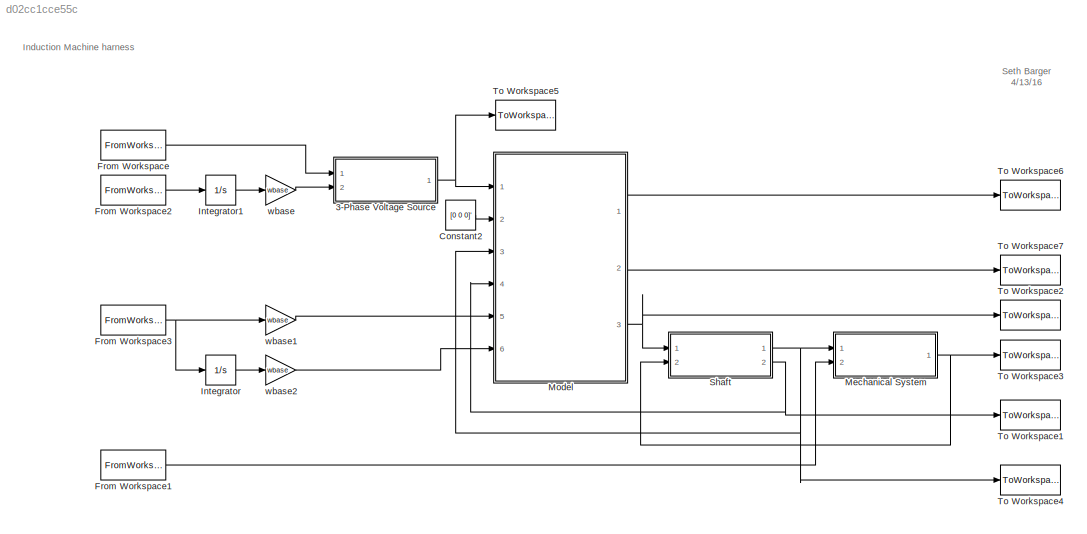
MODEL slx_d02cc1cce55c
KIND model
CONFIG AbsTol = auto
CONFIG FixedStep = auto
CONFIG MaxStep = max_step_size
CONFIG MinStep = auto
CONFIG RelTol = 1e-3
CONFIG SampleTimeConstraint = Unconstrained
CONFIG Solver = ode45
CONFIG SolverMode = Auto
CONFIG SolverName = ode45
CONFIG StartTime = start_time
CONFIG StopTime = stop_time
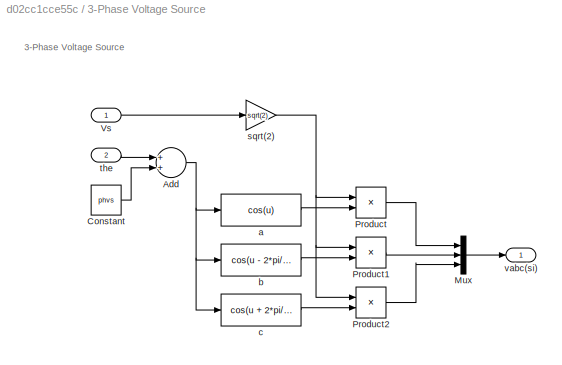
BLOCK [SubSystem] 3-Phase Voltage Source
  Ports = [2, 1]
  RequestExecContextInheritance = off
  Variant = off
BLOCK [Sum] 3-Phase Voltage Source/Add
  InputSameDT = off
  OutDataTypeStr = Inherit: Inherit via internal rule
  Ports = [2, 1]
  SaturateOnIntegerOverflow = off
BLOCK [Constant] 3-Phase Voltage Source/Constant
  Value = phvs
BLOCK [Mux] 3-Phase Voltage Source/Mux
  DisplayOption = bar
  Inputs = 3
  Ports = [3, 1]
BLOCK [Product] 3-Phase Voltage Source/Product
  InputSameDT = off
  OutDataTypeStr = Inherit: Inherit via internal rule
  Ports = [2, 1]
  SaturateOnIntegerOverflow = off
BLOCK [Product] 3-Phase Voltage Source/Product1
  InputSameDT = off
  OutDataTypeStr = Inherit: Inherit via internal rule
  Ports = [2, 1]
  SaturateOnIntegerOverflow = off
BLOCK [Product] 3-Phase Voltage Source/Product2
  InputSameDT = off
  OutDataTypeStr = Inherit: Inherit via internal rule
  Ports = [2, 1]
  SaturateOnIntegerOverflow = off
BLOCK [Inport] 3-Phase Voltage Source/Vs
  IconDisplay = Port number
BLOCK [Fcn] 3-Phase Voltage Source/a
  Expr = cos(u)
BLOCK [Fcn] 3-Phase Voltage Source/b
  Expr = cos(u - 2*pi/3)
BLOCK [Fcn] 3-Phase Voltage Source/c
  Expr = cos(u + 2*pi/3)
BLOCK [Gain] 3-Phase Voltage Source/sqrt(2)
  Gain = sqrt(2)
  OutDataTypeStr = Inherit: Inherit via internal rule
  ParamDataTypeStr = Inherit: Inherit via internal rule
  SaturateOnIntegerOverflow = off
BLOCK [Inport] 3-Phase Voltage Source/the
  IconDisplay = Port number
  Port = 2
BLOCK [Outport] 3-Phase Voltage Source/vabc(si)
  IconDisplay = Port number
BLOCK [Constant] Constant2
  Value = [0 0 0]'
BLOCK [FromWorkspace] From Workspace
  Interpolate = off
  OutputAfterFinalValue = Holding final value
  SampleTime = 0
  VariableName = Vs_in
  ZeroCross = on
BLOCK [FromWorkspace] From Workspace1
  Interpolate = off
  OutputAfterFinalValue = Holding final value
  SampleTime = 0
  VariableName = K0_in
  ZeroCross = on
BLOCK [FromWorkspace] From Workspace2
  Interpolate = off
  OutputAfterFinalValue = Holding final value
  SampleTime = 0
  VariableName = we_pu_in
  ZeroCross = on
BLOCK [FromWorkspace] From Workspace3
  Interpolate = off
  OutputAfterFinalValue = Holding final value
  SampleTime = 0
  VariableName = w_pu_in
  ZeroCross = on
BLOCK [Integrator] Integrator
  InitialCondition = th0_pu
  Ports = [1, 1]
BLOCK [Integrator] Integrator1
  InitialCondition = the0_pu
  Ports = [1, 1]
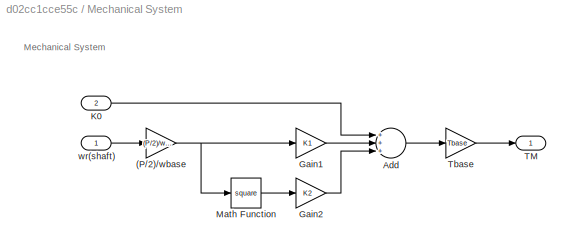
BLOCK [SubSystem] Mechanical System
  Ports = [2, 1]
  RequestExecContextInheritance = off
  Variant = off
BLOCK [Gain] Mechanical System/(P//2)//wbase
  Gain = (P/2)/wbase
  OutDataTypeStr = Inherit: Inherit via internal rule
  ParamDataTypeStr = Inherit: Inherit via internal rule
  SaturateOnIntegerOverflow = off
BLOCK [Sum] Mechanical System/Add
  InputSameDT = off
  Inputs = +++
  OutDataTypeStr = Inherit: Inherit via internal rule
  Ports = [3, 1]
  SaturateOnIntegerOverflow = off
BLOCK [Gain] Mechanical System/Gain1
  Gain = K1
  OutDataTypeStr = Inherit: Inherit via internal rule
  ParamDataTypeStr = Inherit: Inherit via internal rule
  SaturateOnIntegerOverflow = off
BLOCK [Gain] Mechanical System/Gain2
  Gain = K2
  OutDataTypeStr = Inherit: Inherit via internal rule
  ParamDataTypeStr = Inherit: Inherit via internal rule
  SaturateOnIntegerOverflow = off
BLOCK [Inport] Mechanical System/K0
  IconDisplay = Port number
  Port = 2
BLOCK [Math] Mechanical System/Math Function
  Operator = square
  Ports = [1, 1]
BLOCK [Outport] Mechanical System/TM
  IconDisplay = Port number
BLOCK [Gain] Mechanical System/Tbase
  Gain = Tbase
  OutDataTypeStr = Inherit: Inherit via internal rule
  ParamDataTypeStr = Inherit: Inherit via internal rule
  SaturateOnIntegerOverflow = off
BLOCK [Inport] Mechanical System/wr(shaft)
  IconDisplay = Port number
BLOCK [ModelReference] Model
  ModelNameDialog = induction_machine
  ModelReferenceVersion = 1.7
  Ports = [6, 3]
  Variant = off
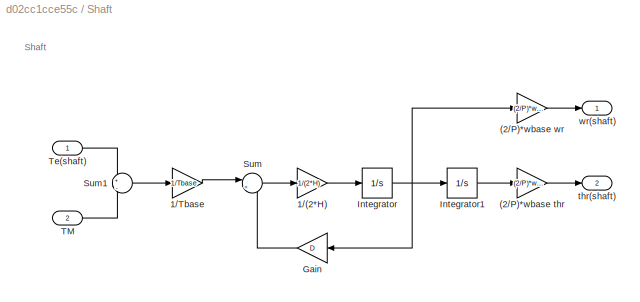
BLOCK [SubSystem] Shaft
  Ports = [2, 2]
  RequestExecContextInheritance = off
  Variant = off
BLOCK [Gain] Shaft/(2//P)*wbase thr
  Gain = (2/P)*wbase
  OutDataTypeStr = Inherit: Inherit via internal rule
  ParamDataTypeStr = Inherit: Inherit via internal rule
  SaturateOnIntegerOverflow = off
BLOCK [Gain] Shaft/(2//P)*wbase wr
  Gain = (2/P)*wbase
  OutDataTypeStr = Inherit: Inherit via internal rule
  ParamDataTypeStr = Inherit: Inherit via internal rule
  SaturateOnIntegerOverflow = off
BLOCK [Gain] Shaft/1//(2*H)
  Gain = 1/(2*H)
  OutDataTypeStr = Inherit: Inherit via internal rule
  ParamDataTypeStr = Inherit: Inherit via internal rule
  SaturateOnIntegerOverflow = off
BLOCK [Gain] Shaft/1//Tbase
  Gain = 1/Tbase
  OutDataTypeStr = Inherit: Inherit via internal rule
  ParamDataTypeStr = Inherit: Inherit via internal rule
  SaturateOnIntegerOverflow = off
BLOCK [Gain] Shaft/Gain
  Gain = D
  OutDataTypeStr = Inherit: Inherit via internal rule
  ParamDataTypeStr = Inherit: Inherit via internal rule
  SaturateOnIntegerOverflow = off
BLOCK [Integrator] Shaft/Integrator
  InitialCondition = wr0_pu
  Ports = [1, 1]
BLOCK [Integrator] Shaft/Integrator1
  InitialCondition = thr0_pu
  Ports = [1, 1]
BLOCK [Sum] Shaft/Sum
  IconShape = round
  InputSameDT = off
  Inputs = |+-
  OutDataTypeStr = Inherit: Inherit via internal rule
  Ports = [2, 1]
  SaturateOnIntegerOverflow = off
BLOCK [Sum] Shaft/Sum1
  IconShape = round
  InputSameDT = off
  Inputs = +|-
  OutDataTypeStr = Inherit: Inherit via internal rule
  Ports = [2, 1]
  SaturateOnIntegerOverflow = off
BLOCK [Inport] Shaft/TM
  IconDisplay = Port number
  Port = 2
BLOCK [Inport] Shaft/Te(shaft)
  IconDisplay = Port number
BLOCK [Outport] Shaft/thr(shaft)
  IconDisplay = Port number
  Port = 2
BLOCK [Outport] Shaft/wr(shaft)
  IconDisplay = Port number
BLOCK [ToWorkspace] To Workspace1
  MaxDataPoints = inf
  Ports = [1]
  SampleTime = -1
  VariableName = thr_shaft
BLOCK [ToWorkspace] To Workspace2
  MaxDataPoints = inf
  Ports = [1]
  SampleTime = -1
  VariableName = Te_shaft
BLOCK [ToWorkspace] To Workspace3
  MaxDataPoints = inf
  Ports = [1]
  SampleTime = -1
  VariableName = TM
BLOCK [ToWorkspace] To Workspace4
  MaxDataPoints = inf
  Ports = [1]
  SampleTime = -1
  VariableName = wr_shaft
BLOCK [ToWorkspace] To Workspace5
  MaxDataPoints = inf
  Ports = [1]
  SampleTime = -1
  VariableName = vsabc_si
BLOCK [ToWorkspace] To Workspace6
  MaxDataPoints = inf
  Ports = [1]
  SampleTime = -1
  VariableName = isabc_si
BLOCK [ToWorkspace] To Workspace7
  MaxDataPoints = inf
  Ports = [1]
  SampleTime = -1
  VariableName = irabc_si
BLOCK [Gain] wbase
  Gain = wbase
  OutDataTypeStr = Inherit: Inherit via internal rule
  ParamDataTypeStr = Inherit: Inherit via internal rule
  SaturateOnIntegerOverflow = off
BLOCK [Gain] wbase1
  Gain = wbase
  OutDataTypeStr = Inherit: Inherit via internal rule
  ParamDataTypeStr = Inherit: Inherit via internal rule
  SaturateOnIntegerOverflow = off
BLOCK [Gain] wbase2
  Gain = wbase
  OutDataTypeStr = Inherit: Inherit via internal rule
  ParamDataTypeStr = Inherit: Inherit via internal rule
  SaturateOnIntegerOverflow = off
ANNOTATION (root): Seth Barger 4/13/16
ANNOTATION (root): Induction Machine harness
ANNOTATION 3-Phase Voltage Source: 3-Phase Voltage Source
ANNOTATION Mechanical System: Mechanical System
ANNOTATION Shaft: Shaft
NET 3-Phase Voltage Source/Add:1 -> 3-Phase Voltage Source/a:1, 3-Phase Voltage Source/b:1, 3-Phase Voltage Source/c:1
LINE 3-Phase Voltage Source/Constant:1 -> 3-Phase Voltage Source/Add:2
LINE 3-Phase Voltage Source/Mux:1 -> 3-Phase Voltage Source/vabc(si):1
LINE 3-Phase Voltage Source/Product1:1 -> 3-Phase Voltage Source/Mux:2
LINE 3-Phase Voltage Source/Product2:1 -> 3-Phase Voltage Source/Mux:3
LINE 3-Phase Voltage Source/Product:1 -> 3-Phase Voltage Source/Mux:1
LINE 3-Phase Voltage Source/Vs:1 -> 3-Phase Voltage Source/sqrt(2):1
LINE 3-Phase Voltage Source/a:1 -> 3-Phase Voltage Source/Product:2
LINE 3-Phase Voltage Source/b:1 -> 3-Phase Voltage Source/Product1:2
LINE 3-Phase Voltage Source/c:1 -> 3-Phase Voltage Source/Product2:2
NET 3-Phase Voltage Source/sqrt(2):1 -> 3-Phase Voltage Source/Product1:1, 3-Phase Voltage Source/Product2:1, 3-Phase Voltage Source/Product:1
LINE 3-Phase Voltage Source/the:1 -> 3-Phase Voltage Source/Add:1
NET 3-Phase Voltage Source:1 -> Model:1, To Workspace5:1
LINE Constant2:1 -> Model:2
LINE From Workspace1:1 -> Mechanical System:2
LINE From Workspace2:1 -> Integrator1:1
NET From Workspace3:1 -> Integrator:1, wbase1:1
LINE From Workspace:1 -> 3-Phase Voltage Source:1
LINE Integrator1:1 -> wbase:1
LINE Integrator:1 -> wbase2:1
NET Mechanical System/(P//2)//wbase:1 -> Mechanical System/Gain1:1, Mechanical System/Math Function:1
LINE Mechanical System/Add:1 -> Mechanical System/Tbase:1
LINE Mechanical System/Gain1:1 -> Mechanical System/Add:2
LINE Mechanical System/Gain2:1 -> Mechanical System/Add:3
LINE Mechanical System/K0:1 -> Mechanical System/Add:1
LINE Mechanical System/Math Function:1 -> Mechanical System/Gain2:1
LINE Mechanical System/Tbase:1 -> Mechanical System/TM:1
LINE Mechanical System/wr(shaft):1 -> Mechanical System/(P//2)//wbase:1
NET Mechanical System:1 -> Shaft:2, To Workspace3:1
LINE Model:1 -> To Workspace6:1
LINE Model:2 -> To Workspace7:1
NET Model:3 -> Shaft:1, To Workspace2:1
LINE Shaft/(2//P)*wbase thr:1 -> Shaft/thr(shaft):1
LINE Shaft/(2//P)*wbase wr:1 -> Shaft/wr(shaft):1
LINE Shaft/1//(2*H):1 -> Shaft/Integrator:1
LINE Shaft/1//Tbase:1 -> Shaft/Sum:1
LINE Shaft/Gain:1 -> Shaft/Sum:2
LINE Shaft/Integrator1:1 -> Shaft/(2//P)*wbase thr:1
NET Shaft/Integrator:1 -> Shaft/(2//P)*wbase wr:1, Shaft/Gain:1, Shaft/Integrator1:1
LINE Shaft/Sum1:1 -> Shaft/1//Tbase:1
LINE Shaft/Sum:1 -> Shaft/1//(2*H):1
LINE Shaft/TM:1 -> Shaft/Sum1:2
LINE Shaft/Te(shaft):1 -> Shaft/Sum1:1
NET Shaft:1 -> Mechanical System:1, Model:3, To Workspace4:1
NET Shaft:2 -> Model:4, To Workspace1:1
LINE wbase1:1 -> Model:5
LINE wbase2:1 -> Model:6
LINE wbase:1 -> 3-Phase Voltage Source:2
note: NET lines group one-source signal fan-out (src -> all destinations, sorted); 1:1 wires keep LINE
